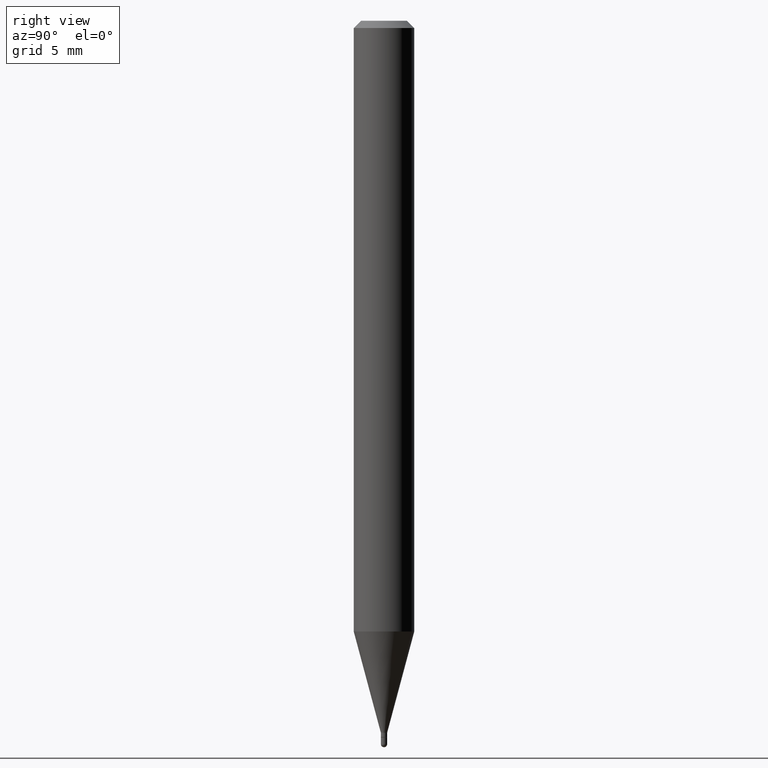
[diagram: clean part render]
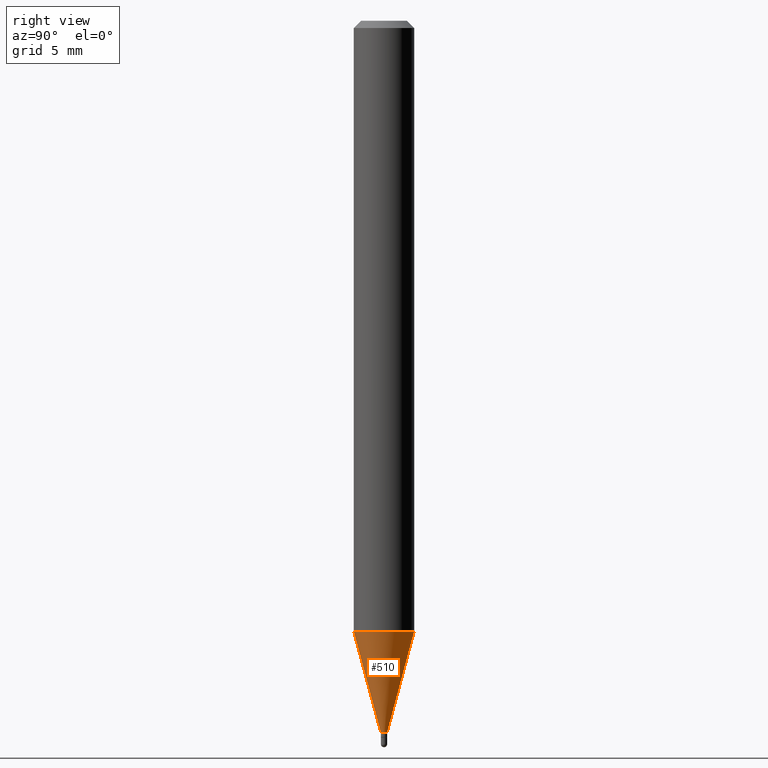
[diagram: same view with one face highlighted and labeled with its STEP entity id]
A machine part, right view. The second image highlights one B-rep face of the part: STEP entity #510.
In plain terms, the highlighted conical surface has half-angle 15 deg.
Its self-contained STEP definition (entity closure, byte-faithful):
#21 = EDGE_CURVE ( 'NONE', #227, #159, #56, .T. ) ;
#56 = CIRCLE ( 'NONE', #278, 0.06250000000000000000 ) ;
#59 = FACE_OUTER_BOUND ( 'NONE', #445, .T. ) ;
#65 = LINE ( 'NONE', #342, #179 ) ;
#71 = VECTOR ( 'NONE', #221, 39.37007874015749564 ) ;
#99 = CARTESIAN_POINT ( 'NONE',  ( -4.364351673553608545E-16, -0.06250000000000439926, -1.261005154776142723 ) ) ;
#112 = EDGE_CURVE ( 'NONE', #393, #227, #301, .T. ) ;
#140 = CARTESIAN_POINT ( 'NONE',  ( 4.440892098500932831E-16, 0.06249999999999557992, -1.261005154776143389 ) ) ;
#147 = ORIENTED_EDGE ( 'NONE', *, *, #112, .F. ) ;
#159 = VERTEX_POINT ( 'NONE', #140 ) ;
#179 = VECTOR ( 'NONE', #370, 39.37007874015747433 ) ;
#186 = CARTESIAN_POINT ( 'NONE',  ( 2.451372438372677661E-16, 0.006499999999994789460, -1.469999999999999973 ) ) ;
#199 = AXIS2_PLACEMENT_3D ( 'NONE', #388, #389, #392 ) ;
#200 = CARTESIAN_POINT ( 'NONE',  ( -4.538925740492423500E-17, -0.006500000000005055553, -1.469999999999999973 ) ) ;
#205 = DIRECTION ( 'NONE',  ( -2.445466135731446828E-29, 3.491485163084822372E-15, 1.000000000000000000 ) ) ;
#210 = CARTESIAN_POINT ( 'NONE',  ( 3.594835219525226569E-29, -5.132483189734688276E-15, -1.469999999999999973 ) ) ;
#221 = DIRECTION ( 'NONE',  ( -1.807323732225328562E-15, -0.2588190451025179639, 0.9659258262890689783 ) ) ;
#227 = VERTEX_POINT ( 'NONE', #99 ) ;
#264 = CONICAL_SURFACE ( 'NONE', #434, 0.006499999999999922506, 0.2617993877991501295 ) ;
#278 = AXIS2_PLACEMENT_3D ( 'NONE', #488, #205, #496 ) ;
#285 = ORIENTED_EDGE ( 'NONE', *, *, #381, .T. ) ;
#293 = EDGE_CURVE ( 'NONE', #348, #159, #65, .T. ) ;
#301 = LINE ( 'NONE', #331, #71 ) ;
#306 = ORIENTED_EDGE ( 'NONE', *, *, #293, .T. ) ;
#312 = ORIENTED_EDGE ( 'NONE', *, *, #21, .F. ) ;
#320 = CIRCLE ( 'NONE', #199, 0.006499999999999922506 ) ;
#331 = CARTESIAN_POINT ( 'NONE',  ( -4.538925740492423500E-17, -0.006500000000005055553, -1.469999999999999973 ) ) ;
#342 = CARTESIAN_POINT ( 'NONE',  ( 4.618527782444190393E-17, 0.006499999999994789460, -1.469999999999999973 ) ) ;
#348 = VERTEX_POINT ( 'NONE', #186 ) ;
#363 = DIRECTION ( 'NONE',  ( -6.982962677686265133E-15, -1.000000000000000000, 0.000000000000000000 ) ) ;
#370 = DIRECTION ( 'NONE',  ( 1.839019923739599526E-15, 0.2588190451025248473, 0.9659258262890673130 ) ) ;
#381 = EDGE_CURVE ( 'NONE', #393, #348, #320, .T. ) ;
#388 = CARTESIAN_POINT ( 'NONE',  ( 3.594835219525226569E-29, -5.132483189734688276E-15, -1.469999999999999973 ) ) ;
#389 = DIRECTION ( 'NONE',  ( -2.445466135731446828E-29, 3.491485163084822372E-15, 1.000000000000000000 ) ) ;
#392 = DIRECTION ( 'NONE',  ( -6.982962677686265133E-15, -1.000000000000000000, 0.000000000000000000 ) ) ;
#393 = VERTEX_POINT ( 'NONE', #200 ) ;
#434 = AXIS2_PLACEMENT_3D ( 'NONE', #210, #444, #363 ) ;
#444 = DIRECTION ( 'NONE',  ( -2.445466135731446828E-29, 3.491485163084822372E-15, 1.000000000000000000 ) ) ;
#445 = EDGE_LOOP ( 'NONE', ( #285, #306, #312, #147 ) ) ;
#488 = CARTESIAN_POINT ( 'NONE',  ( 3.083745402987849892E-29, -4.402780788474383222E-15, -1.261005154776143167 ) ) ;
#496 = DIRECTION ( 'NONE',  ( -6.982962677686265922E-15, -1.000000000000000000, 4.370956789862821150E-15 ) ) ;
#510 = ADVANCED_FACE ( 'NONE', ( #59 ), #264, .T. ) ;